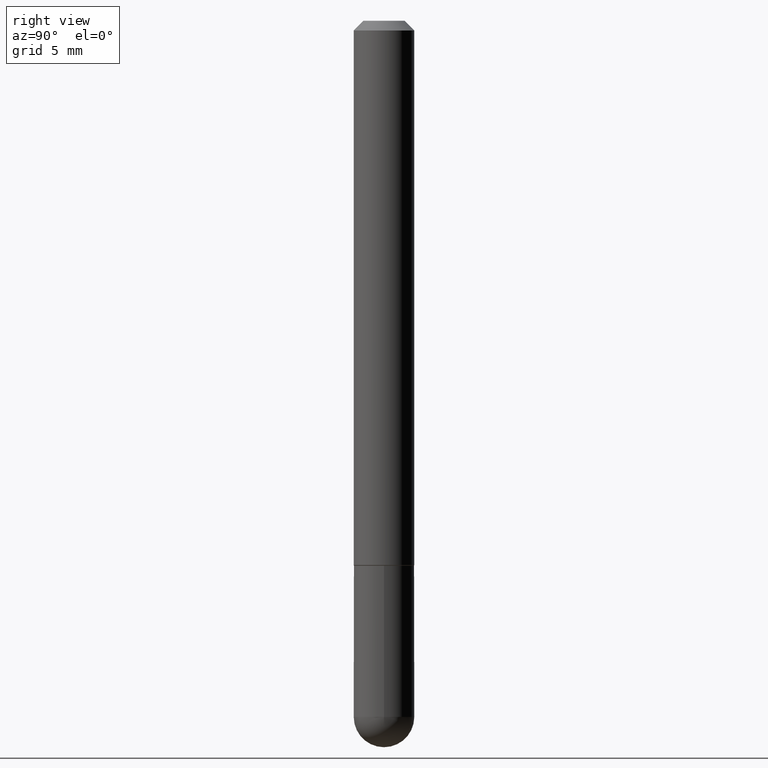
[diagram: clean part render]
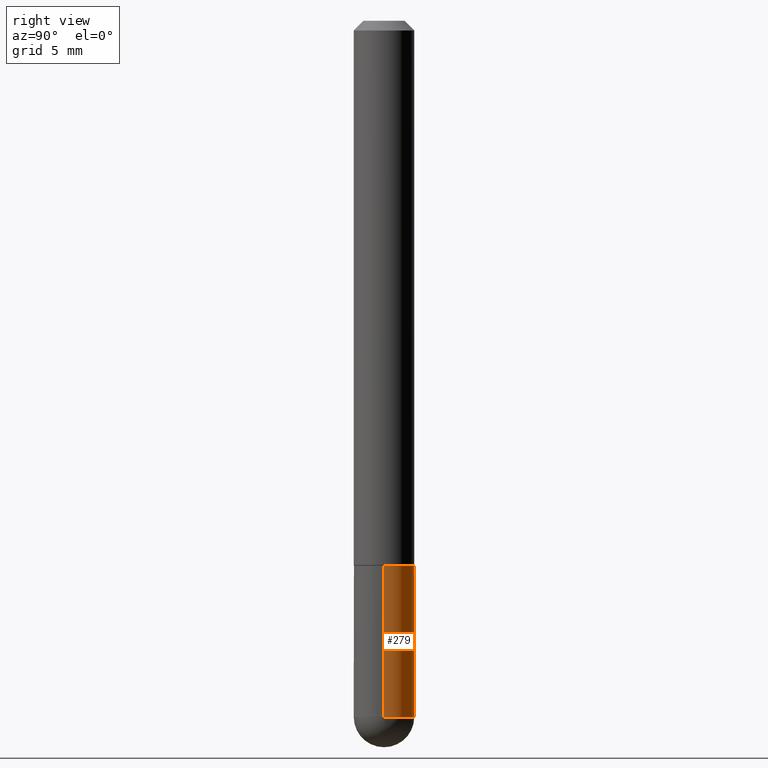
[diagram: same view with one face highlighted and labeled with its STEP entity id]
A machine part, right view. The second image highlights one B-rep face of the part: STEP entity #279.
In plain terms, the highlighted cylindrical surface (edge-blend (fillet) strip) has radius 1.5875 mm, axis along (-0, 0, 1).
Its self-contained STEP definition (entity closure, byte-faithful):
#11 = VECTOR ( 'NONE', #310, 39.37007874015748143 ) ;
#14 = CARTESIAN_POINT ( 'NONE',  ( 0.000000000000000000, 0.000000000000000000, 0.000000000000000000 ) ) ;
#16 = DIRECTION ( 'NONE',  ( 1.000000000000000000, -6.982962677686269077E-15, 0.000000000000000000 ) ) ;
#20 = VECTOR ( 'NONE', #349, 39.37007874015748143 ) ;
#21 = CARTESIAN_POINT ( 'NONE',  ( -0.06249999999999995143, -4.029371255542718167E-15, -1.437500000000000222 ) ) ;
#41 = DIRECTION ( 'NONE',  ( 1.000000000000000000, -6.982962677686267499E-15, 4.876176775795936353E-29 ) ) ;
#45 = DIRECTION ( 'NONE',  ( 1.000000000000000000, -6.982962677686268288E-15, 0.000000000000000000 ) ) ;
#49 = ORIENTED_EDGE ( 'NONE', *, *, #219, .F. ) ;
#78 = ORIENTED_EDGE ( 'NONE', *, *, #364, .T. ) ;
#86 = CARTESIAN_POINT ( 'NONE',  ( 0.06249999999999997918, -4.364351673553915708E-16, 3.047610484872459170E-30 ) ) ;
#96 = CARTESIAN_POINT ( 'NONE',  ( -0.06249999999999997918, 4.440892098500624683E-16, -3.074334431409315413E-30 ) ) ;
#101 = VERTEX_POINT ( 'NONE', #135 ) ;
#106 = CIRCLE ( 'NONE', #164, 0.06249999999999995143 ) ;
#118 = EDGE_CURVE ( 'NONE', #101, #357, #195, .T. ) ;
#135 = CARTESIAN_POINT ( 'NONE',  ( 4.364351673554256397E-16, 0.06249999999999480971, -1.437500000000000444 ) ) ;
#156 = LINE ( 'NONE', #96, #20 ) ;
#160 = CARTESIAN_POINT ( 'NONE',  ( 0.06249999999999995143, -4.909895632748172453E-15, -1.437500000000000222 ) ) ;
#164 = AXIS2_PLACEMENT_3D ( 'NONE', #183, #331, #45 ) ;
#183 = CARTESIAN_POINT ( 'NONE',  ( 3.515361408891134418E-29, -5.019004424587023131E-15, -1.437500000000000222 ) ) ;
#184 = ORIENTED_EDGE ( 'NONE', *, *, #354, .F. ) ;
#190 = AXIS2_PLACEMENT_3D ( 'NONE', #334, #306, #16 ) ;
#195 = CIRCLE ( 'NONE', #237, 0.06249999999999995143 ) ;
#207 = DIRECTION ( 'NONE',  ( -2.445468806185136597E-29, 3.491481338843145583E-15, 1.000000000000000000 ) ) ;
#211 = DIRECTION ( 'NONE',  ( -2.445468806185136597E-29, 3.491481338843145583E-15, 1.000000000000000000 ) ) ;
#214 = ORIENTED_EDGE ( 'NONE', *, *, #290, .T. ) ;
#219 = EDGE_CURVE ( 'NONE', #247, #318, #235, .T. ) ;
#235 = CIRCLE ( 'NONE', #190, 0.06250000000000001388 ) ;
#237 = AXIS2_PLACEMENT_3D ( 'NONE', #264, #207, #366 ) ;
#238 = FACE_OUTER_BOUND ( 'NONE', #332, .T. ) ;
#247 = VERTEX_POINT ( 'NONE', #382 ) ;
#264 = CARTESIAN_POINT ( 'NONE',  ( 3.515361408891134418E-29, -5.019004424587023131E-15, -1.437500000000000222 ) ) ;
#279 = ADVANCED_FACE ( 'NONE', ( #238 ), #360, .T. ) ;
#290 = EDGE_CURVE ( 'NONE', #394, #101, #106, .T. ) ;
#306 = DIRECTION ( 'NONE',  ( -2.445468806185136597E-29, 3.491481338843145583E-15, 1.000000000000000000 ) ) ;
#310 = DIRECTION ( 'NONE',  ( -2.445468806185136877E-29, 3.491481338843145188E-15, 1.000000000000000000 ) ) ;
#318 = VERTEX_POINT ( 'NONE', #373 ) ;
#331 = DIRECTION ( 'NONE',  ( -2.445468806185136597E-29, 3.491481338843145583E-15, 1.000000000000000000 ) ) ;
#332 = EDGE_LOOP ( 'NONE', ( #367, #78, #49, #184, #214 ) ) ;
#334 = CARTESIAN_POINT ( 'NONE',  ( 2.751152406958278111E-29, -3.927916506198538435E-15, -1.124999999999999778 ) ) ;
#343 = AXIS2_PLACEMENT_3D ( 'NONE', #14, #211, #41 ) ;
#349 = DIRECTION ( 'NONE',  ( -2.445468806185136877E-29, 3.491481338843145188E-15, 1.000000000000000000 ) ) ;
#354 = EDGE_CURVE ( 'NONE', #394, #247, #371, .T. ) ;
#357 = VERTEX_POINT ( 'NONE', #21 ) ;
#360 = CYLINDRICAL_SURFACE ( 'NONE', #343, 0.06249999999999997918 ) ;
#364 = EDGE_CURVE ( 'NONE', #357, #318, #156, .T. ) ;
#366 = DIRECTION ( 'NONE',  ( 1.000000000000000000, -6.982962677686268288E-15, 0.000000000000000000 ) ) ;
#367 = ORIENTED_EDGE ( 'NONE', *, *, #118, .T. ) ;
#371 = LINE ( 'NONE', #86, #11 ) ;
#373 = CARTESIAN_POINT ( 'NONE',  ( -0.06250000000000001388, -4.029371255542718167E-15, -1.124999999999999778 ) ) ;
#382 = CARTESIAN_POINT ( 'NONE',  ( 0.06250000000000001388, -4.364351673553930105E-15, -1.124999999999999778 ) ) ;
#394 = VERTEX_POINT ( 'NONE', #160 ) ;